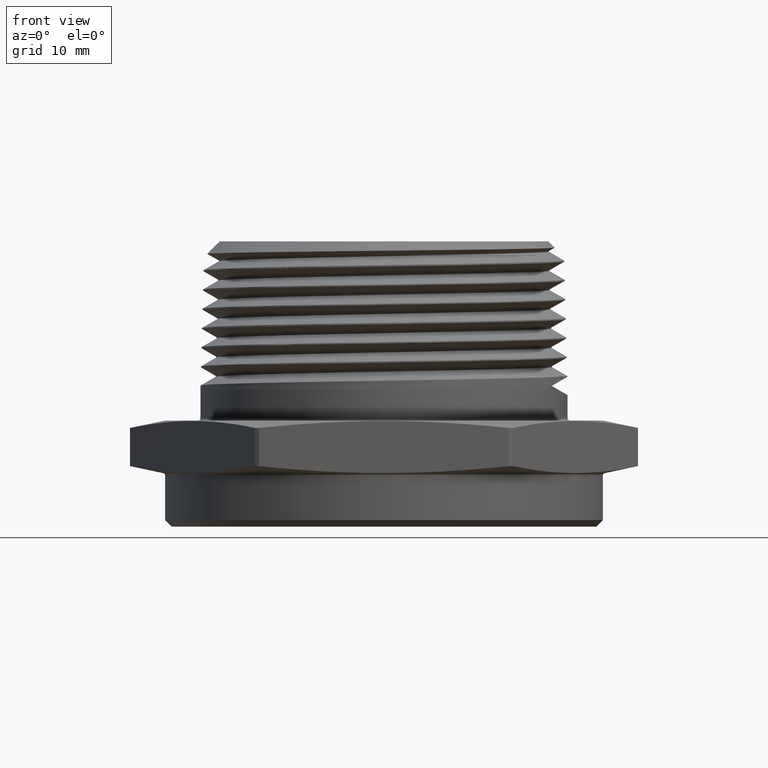
[diagram: clean part render]
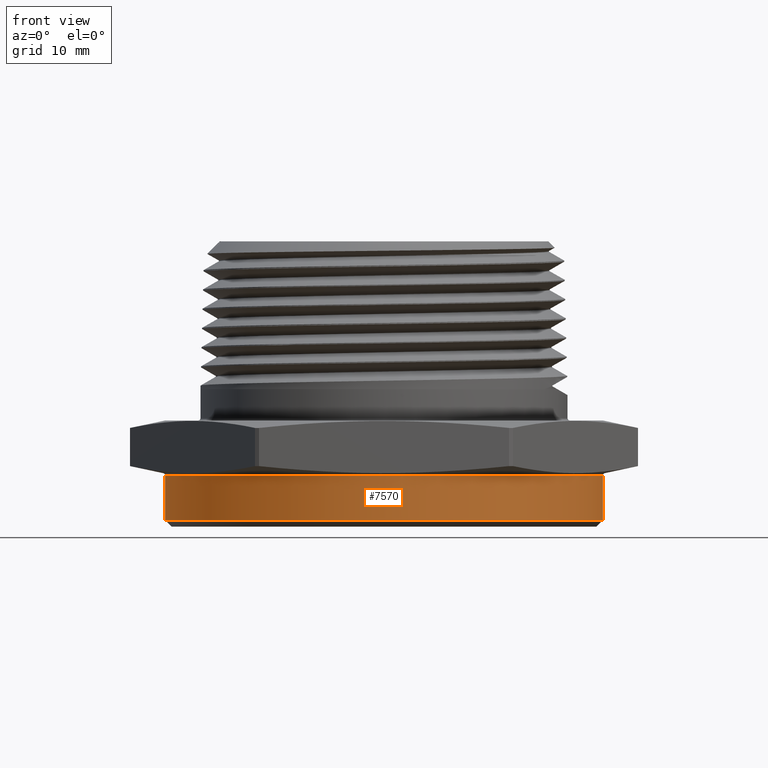
[diagram: same view with one face highlighted and labeled with its STEP entity id]
A machine part, front view. The second image highlights one B-rep face of the part: STEP entity #7570.
In plain terms, the highlighted cylindrical surface (partial cylindrical patch) has radius 25.146 mm, axis along (0, 0, 1).
Its self-contained STEP definition (entity closure, byte-faithful):
#207 = AXIS2_PLACEMENT_3D ( 'NONE', #798, #799, #800 ) ;
#236 = AXIS2_PLACEMENT_3D ( 'NONE', #6251, #6252, #6253 ) ;
#274 = AXIS2_PLACEMENT_3D ( 'NONE', #971, #967, #968 ) ;
#747 = CARTESIAN_POINT ( 'NONE',  ( -0.9900000000000003200, 1.212400331155879900E-016, -0.2399999999999999900 ) ) ;
#751 = CARTESIAN_POINT ( 'NONE',  ( 0.9900000000000003200, 0.0000000000000000000, -0.2399999999999999900 ) ) ;
#752 = DIRECTION ( 'NONE',  ( -0.0000000000000000000, -0.0000000000000000000, 1.000000000000000000 ) ) ;
#757 = DIRECTION ( 'NONE',  ( -0.0000000000000000000, -0.0000000000000000000, 1.000000000000000000 ) ) ;
#798 = CARTESIAN_POINT ( 'NONE',  ( 0.0000000000000000000, 0.0000000000000000000, -0.008097840331950368500 ) ) ;
#799 = DIRECTION ( 'NONE',  ( -6.274932739761922300E-017, -0.0000000000000000000, -1.000000000000000000 ) ) ;
#800 = DIRECTION ( 'NONE',  ( -1.000000000000000000, 0.0000000000000000000, 6.251861727924842400E-017 ) ) ;
#810 = CARTESIAN_POINT ( 'NONE',  ( 0.9900000000000003200, 0.0000000000000000000, -0.2100000000000019600 ) ) ;
#813 = CARTESIAN_POINT ( 'NONE',  ( -0.9900000000000003200, 1.212400331155879900E-016, -0.2100000000000019600 ) ) ;
#815 = CARTESIAN_POINT ( 'NONE',  ( 0.9900000000000003200, 0.0000000000000000000, -0.008097840331950430900 ) ) ;
#818 = CARTESIAN_POINT ( 'NONE',  ( -0.9900000000000003200, 1.212400331155879900E-016, -0.008097840331950307800 ) ) ;
#967 = DIRECTION ( 'NONE',  ( -0.0000000000000000000, -0.0000000000000000000, 1.000000000000000000 ) ) ;
#968 = DIRECTION ( 'NONE',  ( 1.000000000000000000, 0.0000000000000000000, 0.0000000000000000000 ) ) ;
#971 = CARTESIAN_POINT ( 'NONE',  ( 0.0000000000000000000, 0.0000000000000000000, -0.2399999999999999900 ) ) ;
#1126 = FACE_OUTER_BOUND ( 'NONE', #5110, .T. ) ;
#1129 = CYLINDRICAL_SURFACE ( 'NONE', #274, 0.9900000000000003200 ) ;
#4606 = EDGE_CURVE ( 'NONE', #4999, #5002, #7411, .T. ) ;
#4610 = EDGE_CURVE ( 'NONE', #4997, #5002, #7417, .T. ) ;
#4612 = EDGE_CURVE ( 'NONE', #4994, #4999, #7421, .T. ) ;
#4720 = EDGE_CURVE ( 'NONE', #4997, #4994, #7524, .T. ) ;
#4981 = ORIENTED_EDGE ( 'NONE', *, *, #4610, .F. ) ;
#4982 = ORIENTED_EDGE ( 'NONE', *, *, #4720, .T. ) ;
#4983 = ORIENTED_EDGE ( 'NONE', *, *, #4612, .T. ) ;
#4984 = ORIENTED_EDGE ( 'NONE', *, *, #4606, .T. ) ;
#4994 = VERTEX_POINT ( 'NONE', #810 ) ;
#4997 = VERTEX_POINT ( 'NONE', #813 ) ;
#4999 = VERTEX_POINT ( 'NONE', #815 ) ;
#5002 = VERTEX_POINT ( 'NONE', #818 ) ;
#5110 = EDGE_LOOP ( 'NONE', ( #4981, #4982, #4983, #4984 ) ) ;
#6251 = CARTESIAN_POINT ( 'NONE',  ( 0.0000000000000000000, 0.0000000000000000000, -0.2100000000000019600 ) ) ;
#6252 = DIRECTION ( 'NONE',  ( 0.0000000000000000000, 0.0000000000000000000, 1.000000000000000000 ) ) ;
#6253 = DIRECTION ( 'NONE',  ( -1.000000000000000000, 0.0000000000000000000, 0.0000000000000000000 ) ) ;
#7411 = CIRCLE ( 'NONE', #207, 0.9900000000000003200 ) ;
#7417 = LINE ( 'NONE', #747, #7420 ) ;
#7420 = VECTOR ( 'NONE', #752, 39.37007874015748100 ) ;
#7421 = LINE ( 'NONE', #751, #7423 ) ;
#7423 = VECTOR ( 'NONE', #757, 39.37007874015748100 ) ;
#7524 = CIRCLE ( 'NONE', #236, 0.9900000000000003200 ) ;
#7570 = ADVANCED_FACE ( 'NONE', ( #1126 ), #1129, .T. ) ;